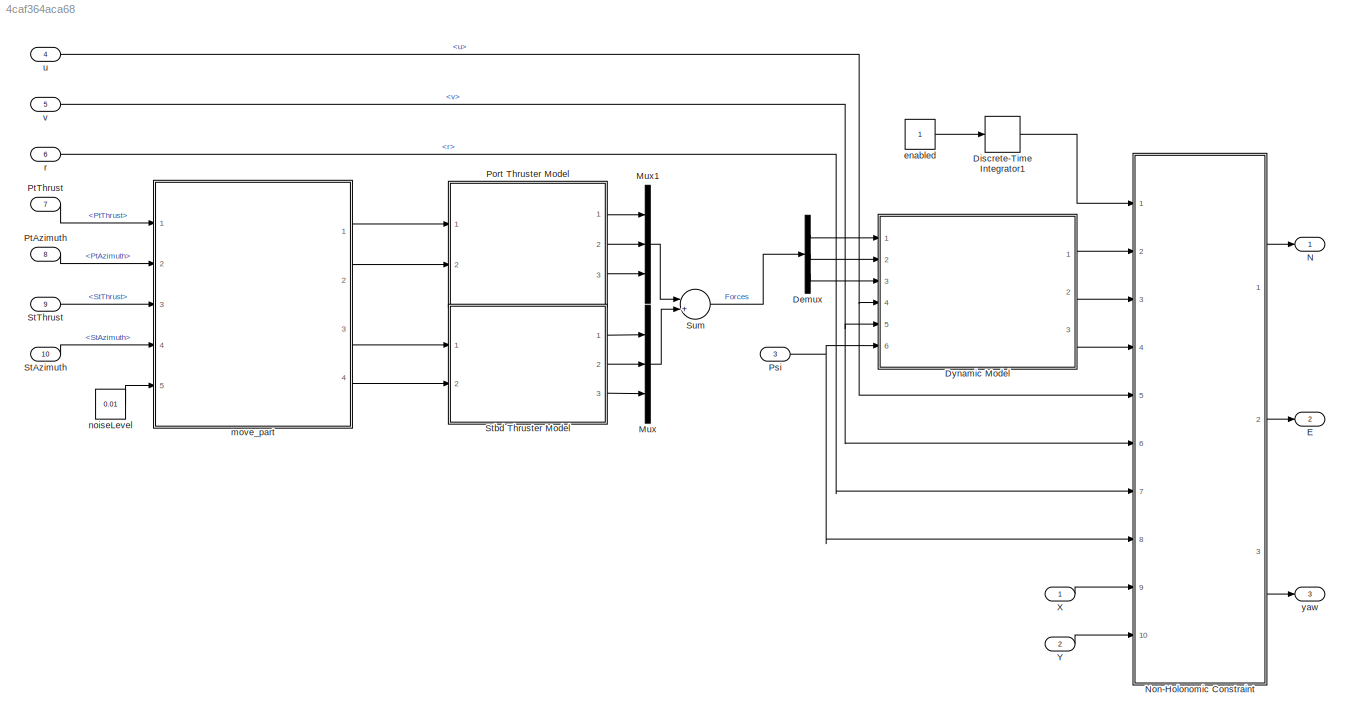
MODEL slx_4caf364aca68
KIND model
BLOCK [Demux] Demux
  DisplayOption = bar
  Outputs = 3
  Ports = [1, 3]
BLOCK [DiscreteIntegrator] Discrete-Time Integrator1
  ICPrevOutput = DiscIntNeverNeededParam
  ICPrevScaledInput = DiscIntNeverNeededParam
  Ports = [1, 1]
  SampleTime = -1
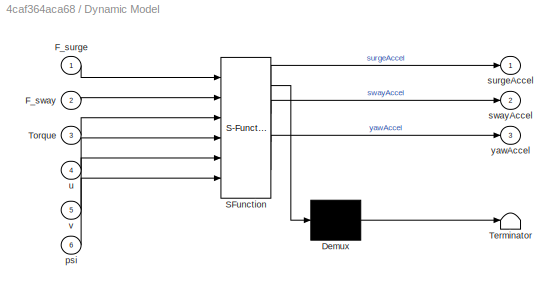
BLOCK [SubSystem] Dynamic Model
  ErrorFcn = Stateflow.Translate.translate
  PermitHierarchicalResolution = ExplicitOnly
  Ports = [6, 3]
  RequestExecContextInheritance = off
  SFBlockType = MATLAB Function
  TreatAsAtomicUnit = on
BLOCK [Demux] Dynamic Model/ Demux 
  Outputs = 1
  Ports = [1, 1]
BLOCK [S-Function] Dynamic Model/ SFunction 
  EnableBusSupport = on
  FunctionName = sf_sfun
  PortCounts = [6 4]
  Ports = [6, 4]
  Tag = Stateflow S-Function SeaCat_Dynamic_Model 399
BLOCK [Terminator] Dynamic Model/ Terminator 
BLOCK [Inport] Dynamic Model/F_surge
  IconDisplay = Port number
BLOCK [Inport] Dynamic Model/F_sway
  IconDisplay = Port number
  Port = 2
BLOCK [Inport] Dynamic Model/Torque
  IconDisplay = Port number
  Port = 3
BLOCK [Inport] Dynamic Model/psi
  IconDisplay = Port number
  Port = 6
BLOCK [Outport] Dynamic Model/surgeAccel
  IconDisplay = Port number
BLOCK [Outport] Dynamic Model/swayAccel
  IconDisplay = Port number
  Port = 2
BLOCK [Inport] Dynamic Model/u
  IconDisplay = Port number
  Port = 4
BLOCK [Inport] Dynamic Model/v
  IconDisplay = Port number
  Port = 5
BLOCK [Outport] Dynamic Model/yawAccel
  IconDisplay = Port number
  Port = 3
BLOCK [Outport] E
  IconDisplay = Port number
  Port = 2
BLOCK [Mux] Mux
  DisplayOption = bar
  Inputs = 3
  Ports = [3, 1]
BLOCK [Mux] Mux1
  DisplayOption = bar
  Inputs = 3
  Ports = [3, 1]
BLOCK [Outport] N
  IconDisplay = Port number
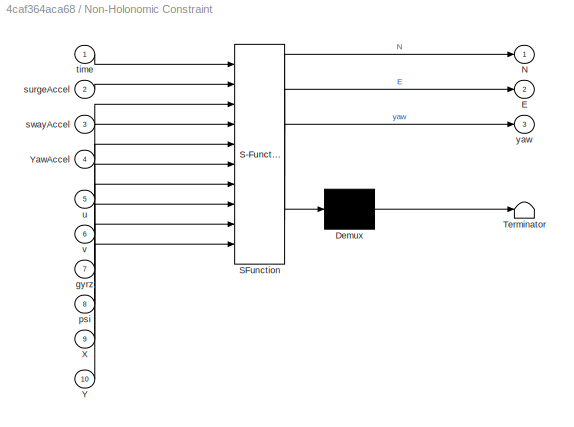
BLOCK [SubSystem] Non-Holonomic Constraint
  ErrorFcn = Stateflow.Translate.translate
  PermitHierarchicalResolution = ExplicitOnly
  Ports = [10, 3]
  RequestExecContextInheritance = off
  SFBlockType = MATLAB Function
  TreatAsAtomicUnit = on
BLOCK [Demux] Non-Holonomic Constraint/ Demux 
  Outputs = 1
  Ports = [1, 1]
BLOCK [S-Function] Non-Holonomic Constraint/ SFunction 
  EnableBusSupport = on
  FunctionName = sf_sfun
  PortCounts = [10 4]
  Ports = [10, 4]
  Tag = Stateflow S-Function SeaCat_Dynamic_Model 400
BLOCK [Terminator] Non-Holonomic Constraint/ Terminator 
BLOCK [Outport] Non-Holonomic Constraint/E
  IconDisplay = Port number
  Port = 2
BLOCK [Outport] Non-Holonomic Constraint/N
  IconDisplay = Port number
BLOCK [Inport] Non-Holonomic Constraint/X
  IconDisplay = Port number
  Port = 9
BLOCK [Inport] Non-Holonomic Constraint/Y
  IconDisplay = Port number
  Port = 10
BLOCK [Inport] Non-Holonomic Constraint/YawAccel
  IconDisplay = Port number
  Port = 4
BLOCK [Inport] Non-Holonomic Constraint/gyrz
  IconDisplay = Port number
  Port = 7
BLOCK [Inport] Non-Holonomic Constraint/psi
  IconDisplay = Port number
  Port = 8
BLOCK [Inport] Non-Holonomic Constraint/surgeAccel
  IconDisplay = Port number
  Port = 2
BLOCK [Inport] Non-Holonomic Constraint/swayAccel
  IconDisplay = Port number
  Port = 3
BLOCK [Inport] Non-Holonomic Constraint/time
  IconDisplay = Port number
BLOCK [Inport] Non-Holonomic Constraint/u
  IconDisplay = Port number
  Port = 5
BLOCK [Inport] Non-Holonomic Constraint/v
  IconDisplay = Port number
  Port = 6
BLOCK [Outport] Non-Holonomic Constraint/yaw
  IconDisplay = Port number
  Port = 3
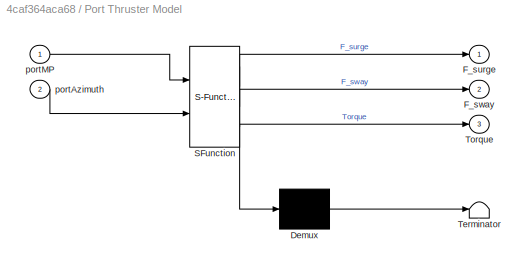
BLOCK [SubSystem] Port Thruster Model
  ErrorFcn = Stateflow.Translate.translate
  PermitHierarchicalResolution = ExplicitOnly
  Ports = [2, 3]
  RequestExecContextInheritance = off
  SFBlockType = MATLAB Function
  TreatAsAtomicUnit = on
BLOCK [Demux] Port Thruster Model/ Demux 
  Outputs = 1
  Ports = [1, 1]
BLOCK [S-Function] Port Thruster Model/ SFunction 
  EnableBusSupport = on
  FunctionName = sf_sfun
  PortCounts = [2 4]
  Ports = [2, 4]
  Tag = Stateflow S-Function SeaCat_Dynamic_Model 401
BLOCK [Terminator] Port Thruster Model/ Terminator 
BLOCK [Outport] Port Thruster Model/F_surge
  IconDisplay = Port number
BLOCK [Outport] Port Thruster Model/F_sway
  IconDisplay = Port number
  Port = 2
BLOCK [Outport] Port Thruster Model/Torque
  IconDisplay = Port number
  Port = 3
BLOCK [Inport] Port Thruster Model/portAzimuth
  IconDisplay = Port number
  Port = 2
BLOCK [Inport] Port Thruster Model/portMP
  IconDisplay = Port number
BLOCK [Inport] Psi
  IconDisplay = Port number
  Port = 3
BLOCK [Inport] PtAzimuth
  IconDisplay = Port number
  Port = 8
BLOCK [Inport] PtThrust
  IconDisplay = Port number
  Port = 7
BLOCK [Inport] StAzimuth
  IconDisplay = Port number
  Port = 10
BLOCK [Inport] StThrust
  IconDisplay = Port number
  Port = 9
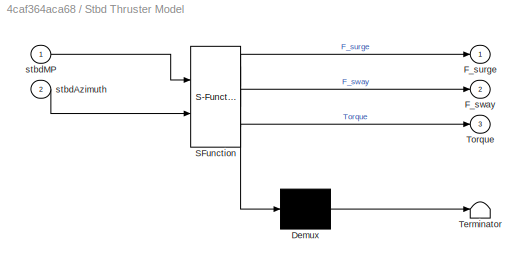
BLOCK [SubSystem] Stbd Thruster Model
  ErrorFcn = Stateflow.Translate.translate
  PermitHierarchicalResolution = ExplicitOnly
  Ports = [2, 3]
  RequestExecContextInheritance = off
  SFBlockType = MATLAB Function
  TreatAsAtomicUnit = on
BLOCK [Demux] Stbd Thruster Model/ Demux 
  Outputs = 1
  Ports = [1, 1]
BLOCK [S-Function] Stbd Thruster Model/ SFunction 
  EnableBusSupport = on
  FunctionName = sf_sfun
  PortCounts = [2 4]
  Ports = [2, 4]
  Tag = Stateflow S-Function SeaCat_Dynamic_Model 402
BLOCK [Terminator] Stbd Thruster Model/ Terminator 
BLOCK [Outport] Stbd Thruster Model/F_surge
  IconDisplay = Port number
BLOCK [Outport] Stbd Thruster Model/F_sway
  IconDisplay = Port number
  Port = 2
BLOCK [Outport] Stbd Thruster Model/Torque
  IconDisplay = Port number
  Port = 3
BLOCK [Inport] Stbd Thruster Model/stbdAzimuth
  IconDisplay = Port number
  Port = 2
BLOCK [Inport] Stbd Thruster Model/stbdMP
  IconDisplay = Port number
BLOCK [Sum] Sum
  IconShape = round
  InputSameDT = off
  Inputs = |++|
  OutDataTypeStr = Inherit: Inherit via internal rule
  Ports = [2, 1]
  SaturateOnIntegerOverflow = off
BLOCK [Inport] X
  IconDisplay = Port number
BLOCK [Inport] Y
  IconDisplay = Port number
  Port = 2
BLOCK [Constant] enabled
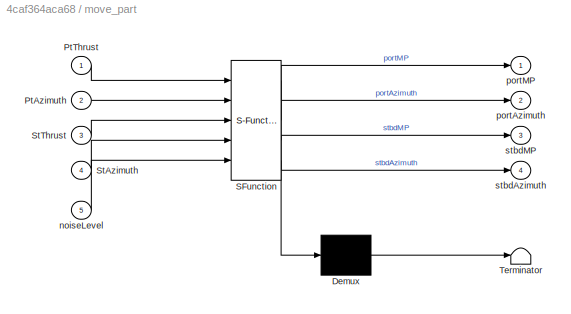
BLOCK [SubSystem] move_part
  ErrorFcn = Stateflow.Translate.translate
  PermitHierarchicalResolution = ExplicitOnly
  Ports = [5, 4]
  RequestExecContextInheritance = off
  SFBlockType = MATLAB Function
  TreatAsAtomicUnit = on
BLOCK [Demux] move_part/ Demux 
  Outputs = 1
  Ports = [1, 1]
BLOCK [S-Function] move_part/ SFunction 
  EnableBusSupport = on
  FunctionName = sf_sfun
  PortCounts = [5 5]
  Ports = [5, 5]
  Tag = Stateflow S-Function SeaCat_Dynamic_Model 73
BLOCK [Terminator] move_part/ Terminator 
BLOCK [Inport] move_part/PtAzimuth
  IconDisplay = Port number
  Port = 2
BLOCK [Inport] move_part/PtThrust
  IconDisplay = Port number
BLOCK [Inport] move_part/StAzimuth
  IconDisplay = Port number
  Port = 4
BLOCK [Inport] move_part/StThrust
  IconDisplay = Port number
  Port = 3
BLOCK [Inport] move_part/noiseLevel
  IconDisplay = Port number
  Port = 5
BLOCK [Outport] move_part/portAzimuth
  IconDisplay = Port number
  Port = 2
BLOCK [Outport] move_part/portMP
  IconDisplay = Port number
BLOCK [Outport] move_part/stbdAzimuth
  IconDisplay = Port number
  Port = 4
BLOCK [Outport] move_part/stbdMP
  IconDisplay = Port number
  Port = 3
BLOCK [Constant] noiseLevel
  Value = 0.01
BLOCK [Inport] r
  IconDisplay = Port number
  Port = 6
BLOCK [Inport] u
  IconDisplay = Port number
  Port = 4
BLOCK [Inport] v
  IconDisplay = Port number
  Port = 5
BLOCK [Outport] yaw
  IconDisplay = Port number
  Port = 3
LINE Demux:1 -> Dynamic Model:1
LINE Demux:2 -> Dynamic Model:2
LINE Demux:3 -> Dynamic Model:3
LINE Discrete-Time Integrator1:1 -> Non-Holonomic Constraint:1
LINE Dynamic Model:1 -> Non-Holonomic Constraint:2
LINE Dynamic Model:2 -> Non-Holonomic Constraint:3
LINE Dynamic Model:3 -> Non-Holonomic Constraint:4
LINE Mux1:1 -> Sum:1
LINE Mux:1 -> Sum:2
LINE Non-Holonomic Constraint:1 -> N:1
LINE Non-Holonomic Constraint:2 -> E:1
LINE Non-Holonomic Constraint:3 -> yaw:1
LINE Port Thruster Model:1 -> Mux1:1
LINE Port Thruster Model:2 -> Mux1:2
LINE Port Thruster Model:3 -> Mux1:3
NET Psi:1 -> Dynamic Model:6, Non-Holonomic Constraint:8
LINE PtAzimuth:1 -> move_part:2
LINE PtThrust:1 -> move_part:1
LINE StAzimuth:1 -> move_part:4
LINE StThrust:1 -> move_part:3
LINE Stbd Thruster Model:1 -> Mux:1
LINE Stbd Thruster Model:2 -> Mux:2
LINE Stbd Thruster Model:3 -> Mux:3
LINE Sum:1 -> Demux:1
LINE X:1 -> Non-Holonomic Constraint:9
LINE Y:1 -> Non-Holonomic Constraint:10
LINE enabled:1 -> Discrete-Time Integrator1:1
LINE move_part:1 -> Port Thruster Model:1
LINE move_part:2 -> Port Thruster Model:2
LINE move_part:3 -> Stbd Thruster Model:1
LINE move_part:4 -> Stbd Thruster Model:2
LINE noiseLevel:1 -> move_part:5
LINE r:1 -> Non-Holonomic Constraint:7
NET u:1 -> Dynamic Model:4, Non-Holonomic Constraint:5
NET v:1 -> Dynamic Model:5, Non-Holonomic Constraint:6
note: NET lines group one-source signal fan-out (src -> all destinations, sorted); 1:1 wires keep LINE
